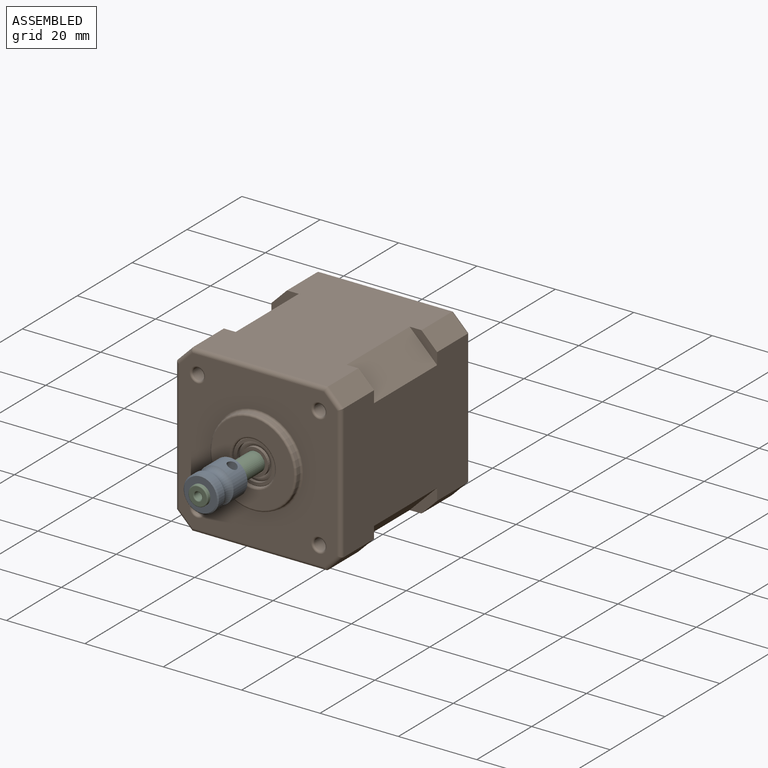
[diagram: assembled view]
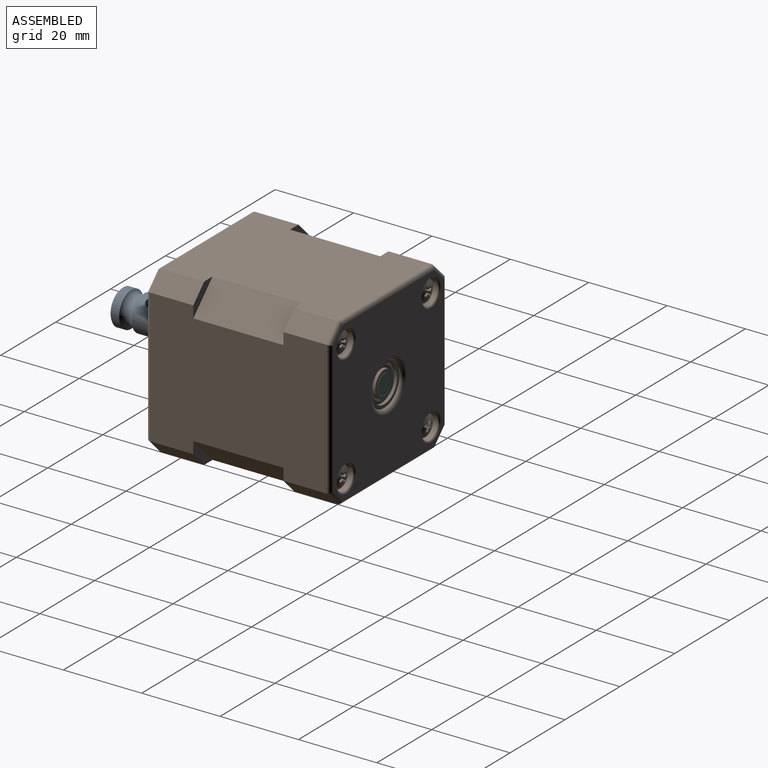
[diagram: assembled view, second angle]
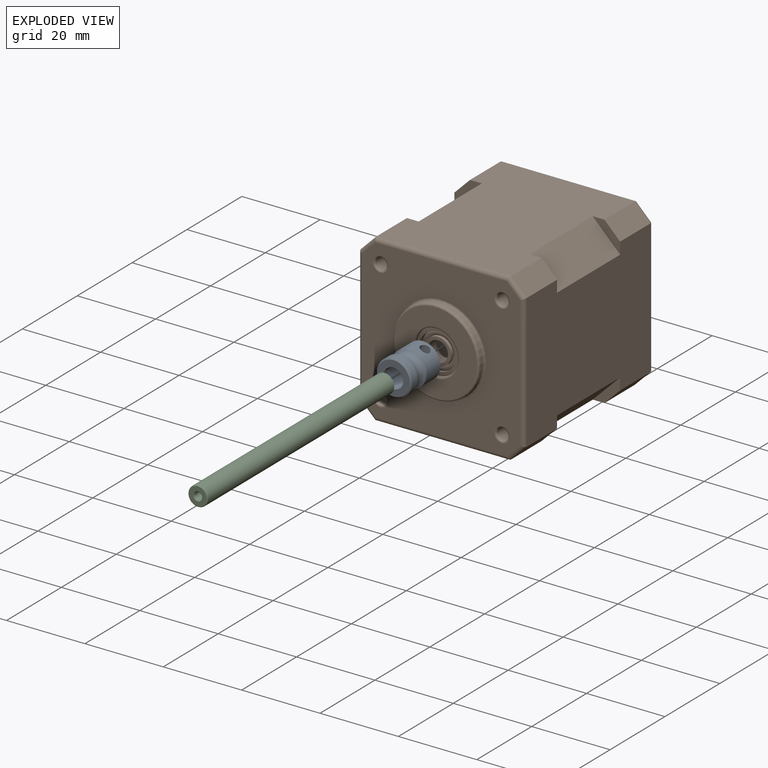
[diagram: exploded view]
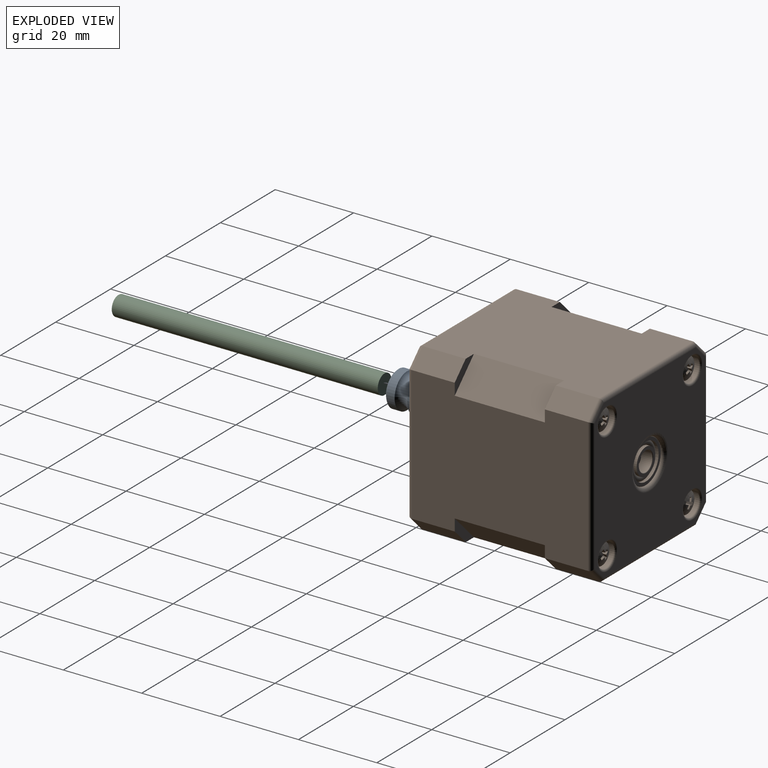
[diagram: exploded view, second angle]
ASSEMBLY  parts=3 mates=2
PART A: 9 faces, bbox 12.1x11x12.1 mm
  f0: cylinder r=4.5mm len=9mm, axis (0,1,0), area 139.2mm2, adj f5,f6,f7
  f1: cylinder r=2.5mm len=11mm, axis (0,1,0), area 167.7mm2, adj f3,f4,f6
  f2: cylinder r=4.5mm len=9mm, axis (0,1,0), area 59.4mm2, adj f5,f8
  f3: plane 8.4x8.4mm, normal (0,-1,0), area 35.8mm2, adj f1,f8
  f4: plane 8.4x8.4mm, normal (0,1,0), area 35.8mm2, adj f1,f7
  f5: torus R=5.58mm, axis (0,-1,0), area 93.4mm2, adj f0,f2
  f6: cylinder r=1.25mm len=2.5mm, axis (0,0,1), area 16.3mm2, adj f0,f1
  f7: cone r=4.5mm half-angle=45deg, axis (0,-1,0), area 11.6mm2, adj f0,f4
  f8: cone r=4.2mm half-angle=45deg, axis (0,1,0), area 11.6mm2, adj f2,f3
PART B: 190 faces, bbox 42.3x42.3x49 mm
  f0: torus R=5.35mm, axis (0,0,1), area 8.1mm2, adj f14,f172
  f1: torus R=5.35mm, axis (0,0,1), area 8.1mm2, adj f13,f175
  f2: cylinder r=4.6mm len=9.2mm, axis (0,0,1), area 24mm2, adj f4,f14
  f3: cylinder r=4.6mm len=9.2mm, axis (0,0,1), area 24mm2, adj f10,f13
  f4: torus R=4mm, axis (0,0,-1), area 33mm2, adj f2,f8
  f5: torus R=2.65mm, axis (0,0,1), area 3.8mm2, adj f6,f12
  f6: cylinder r=2.5mm len=5mm, axis (0,0,1), area 42.4mm2, adj f5,f7
  f7: torus R=2.65mm, axis (0,0,1), area 3.8mm2, adj f6,f11
  f8: cylinder r=3.4mm len=6.8mm, axis (0,0,1), area 17.7mm2, adj f4,f12
  f9: cylinder r=3.4mm len=6.8mm, axis (0,0,1), area 17.7mm2, adj f10,f11
  f10: torus R=4mm, axis (0,0,-1), area 33mm2, adj f3,f9
  f11: plane 6.8x6.8mm, normal (0,0,1), area 14.3mm2, adj f7,f9
  f12: plane 6.8x6.8mm, normal (0,0,-1), area 14.3mm2, adj f5,f8
  f13: plane 10.7x10.7mm, normal (0,0,1), area 23.4mm2, adj f1,f3
  f14: plane 10.7x10.7mm, normal (0,0,-1), area 23.4mm2, adj f0,f2
  f15: plane 5x5mm, normal (0,0,1), area 19.6mm2, adj f18
  f16: plane 10x10mm, normal (0,0,1), area 58.9mm2, adj f18,f19
  f17: cylinder r=5.5mm len=11mm, axis (0,0,1), area 100.7mm2, adj f19,f170
  f18: cylinder r=2.5mm len=5mm, axis (0,0,1), area 78.5mm2, adj f15,f16
  f19: torus R=5mm, axis (0,0,1), area 26.2mm2, adj f16,f17
  f20: cylinder r=5.5mm len=11mm, axis (0,0,1), area 13.3mm2, adj f63,f171
  f21: torus R=2.44mm, axis (0,0,-1), area 6.3mm2, adj f22,f23
  f22: cylinder r=2.8mm len=5.6mm, axis (0,0,-1), area 23.7mm2, adj f21,f156
  f23: sphere r=5mm, area 20.2mm2, adj f21,f24,f25,f26,f27,f28,f29,f31
  f24: plane 1.74x0.93mm, normal (-0.88,0.47,-0.1), area 0.9mm2, adj f23,f28,f33
  f25: plane 1.74x1.08mm, normal (-0.88,0.47,-0.1), area 0.9mm2, adj f23,f29,f32
  f26: plane 1.74x1.08mm, normal (0.88,-0.47,-0.1), area 0.9mm2, adj f23,f28,f35
  f27: plane 1.74x0.93mm, normal (0.88,-0.47,-0.1), area 0.9mm2, adj f23,f29,f36
  f28: plane 1.59x1.26mm, normal (-0.38,-0.72,-0.58), area 1mm2, adj f23,f24,f26,f30
  f29: plane 1.59x1.26mm, normal (0.38,0.72,-0.58), area 1mm2, adj f23,f25,f27,f30
  f30: plane 0.5x0.5mm, normal (0,0,-1), area 0.1mm2, adj f28,f29,f31,f34
  f31: plane 1.6x1.26mm, normal (-0.72,0.38,-0.58), area 1mm2, adj f23,f30,f32,f33
  f32: plane 1.73x0.92mm, normal (0.47,0.88,-0.1), area 0.9mm2, adj f23,f25,f31
  f33: plane 1.73x1.08mm, normal (-0.47,-0.88,-0.1), area 0.9mm2, adj f23,f24,f31
  f34: plane 1.6x1.26mm, normal (0.72,-0.38,-0.58), area 1mm2, adj f23,f30,f35,f36
  f35: plane 1.73x0.92mm, normal (-0.47,-0.88,-0.1), area 0.9mm2, adj f23,f26,f34
  f36: plane 1.73x1.08mm, normal (0.47,0.88,-0.1), area 0.9mm2, adj f23,f27,f34
  f37: cylinder r=2.8mm len=5.6mm, axis (0,0,-1), area 23mm2, adj f38,f98
  f38: torus R=2.44mm, axis (0,0,-1), area 6.3mm2, adj f37,f39
  f39: sphere r=5mm, area 20.2mm2, adj f38,f40,f41,f42,f43,f44,f45,f47
  f40: plane 1.74x0.89mm, normal (-0.85,0.51,-0.1), area 0.9mm2, adj f39,f44,f49
  f41: plane 1.74x1.06mm, normal (-0.85,0.51,-0.1), area 0.9mm2, adj f39,f45,f48
  f42: plane 1.74x1.06mm, normal (0.85,-0.51,-0.1), area 0.9mm2, adj f39,f44,f51
  f43: plane 1.74x0.89mm, normal (0.85,-0.51,-0.1), area 0.9mm2, adj f39,f45,f52
  f44: plane 1.59x1.25mm, normal (-0.42,-0.7,-0.58), area 1mm2, adj f39,f40,f42,f46
  f45: plane 1.59x1.25mm, normal (0.42,0.7,-0.58), area 1mm2, adj f39,f41,f43,f46
  f46: plane 0.51x0.51mm, normal (0,0,-1), area 0.1mm2, adj f44,f45,f47,f50
  f47: plane 1.6x1.26mm, normal (-0.7,0.42,-0.58), area 1mm2, adj f39,f46,f48,f49
  f48: plane 1.73x0.89mm, normal (0.51,0.85,-0.1), area 0.9mm2, adj f39,f41,f47
  f49: plane 1.73x1.06mm, normal (-0.51,-0.85,-0.1), area 0.9mm2, adj f39,f40,f47
  f50: plane 1.6x1.26mm, normal (0.7,-0.42,-0.58), area 1mm2, adj f39,f46,f51,f52
  f51: plane 1.73x0.89mm, normal (-0.51,-0.85,-0.1), area 0.9mm2, adj f39,f42,f50
  f52: plane 1.73x1.06mm, normal (0.51,0.85,-0.1), area 0.9mm2, adj f39,f43,f50
  f53: torus R=2mm, axis (0,0,1), area 8.3mm2, adj f60,f65
  f54: torus R=2mm, axis (0,0,1), area 8.3mm2, adj f59,f65
  f55: torus R=2mm, axis (0,0,1), area 8.3mm2, adj f58,f65
  f56: torus R=2mm, axis (0,0,1), area 8.3mm2, adj f57,f65
  f57: cylinder r=1.5mm len=4mm, axis (0,0,1), area 37.7mm2, adj f56,f90
  f58: cylinder r=1.5mm len=4mm, axis (0,0,1), area 37.7mm2, adj f55,f89
  f59: cylinder r=1.5mm len=4mm, axis (0,0,1), area 37.7mm2, adj f54,f88
  f60: cylinder r=1.5mm len=4mm, axis (0,0,1), area 37.7mm2, adj f53,f87
  f61: torus R=10.5mm, axis (0,0,1), area 53.4mm2, adj f64,f78
  f62: torus R=11.5mm, axis (0,0,1), area 55.2mm2, adj f64,f65
  f63: torus R=6mm, axis (0,0,1), area 28mm2, adj f20,f78
  f64: cylinder r=11mm len=22mm, axis (0,0,-1), area 69.1mm2, adj f61,f62
  f65: plane 40.3x40.3mm, normal (0,0,1), area 1135mm2, adj f53,f54,f55,f56,f62,f79,f80,f81
  f66: plane 7x7mm, normal (0,0,-1), area 16.5mm2, adj f69,f70,f71,f91
  f67: plane 7x7mm, normal (0,0,-1), area 16.5mm2, adj f69,f75,f76,f92
  f68: plane 7x7mm, normal (0,0,-1), area 16.5mm2, adj f73,f74,f75,f93
  f69: plane 45x34.3mm, normal (0,1,0), area 1405.5mm2, adj f66,f67,f70,f76,f81,f91,f92,f107
  f70: plane 11x4mm, normal (0.71,0.71,0), area 62.2mm2, adj f66,f69,f71,f79
  f71: plane 45x34.3mm, normal (1,0,0), area 1405.5mm2, adj f66,f70,f72,f77,f80,f91,f94,f107
  f72: plane 11x4mm, normal (0.71,-0.71,0), area 62.2mm2, adj f71,f73,f77,f82
  f73: plane 45x34.3mm, normal (0,-1,0), area 1405.5mm2, adj f68,f72,f74,f77,f84,f93,f94,f108
  f74: plane 11x4mm, normal (-0.71,-0.71,0), area 62.2mm2, adj f68,f73,f75,f86
  f75: plane 45x34.3mm, normal (-1,0,0), area 1405.5mm2, adj f67,f68,f74,f76,f85,f92,f93,f109
  f76: plane 11x4mm, normal (-0.71,0.71,0), area 62.2mm2, adj f67,f69,f75,f83
  f77: plane 7x7mm, normal (0,0,-1), area 16.5mm2, adj f71,f72,f73,f94
  f78: plane 21x21mm, normal (0,0,1), area 233.3mm2, adj f61,f63
  f79: cylinder r=1mm len=4.71mm, axis (-0.71,0.71,0), area 8.4mm2, adj f65,f70,f80,f81
  f80: cylinder r=1mm len=34.3mm, axis (0,1,0), area 53.4mm2, adj f65,f71,f79,f82
  f81: cylinder r=1mm len=34.3mm, axis (-1,0,0), area 53.4mm2, adj f65,f69,f79,f83
  f82: cylinder r=1mm len=4.71mm, axis (0.71,0.71,0), area 8.4mm2, adj f65,f72,f80,f84
  f83: cylinder r=1mm len=4.71mm, axis (-0.71,-0.71,0), area 8.4mm2, adj f65,f76,f81,f85
  f84: cylinder r=1mm len=34.3mm, axis (1,0,0), area 53.4mm2, adj f65,f73,f82,f86
  f85: cylinder r=1mm len=34.3mm, axis (0,-1,0), area 53.4mm2, adj f65,f75,f83,f86
  f86: cylinder r=1mm len=4.71mm, axis (0.71,-0.71,0), area 8.4mm2, adj f65,f74,f84,f85
  f87: plane 3x3mm, normal (0,0,1), area 7.1mm2, adj f60
  f88: plane 3x3mm, normal (0,0,1), area 7.1mm2, adj f59
  f89: plane 3x3mm, normal (0,0,1), area 7.1mm2, adj f58
  f90: plane 3x3mm, normal (0,0,1), area 7.1mm2, adj f57
  f91: plane 23x7mm, normal (0.71,0.71,0), area 227.7mm2, adj f66,f69,f71,f107
  f92: plane 23x7mm, normal (-0.71,0.71,0), area 227.7mm2, adj f67,f69,f75,f114
  f93: plane 23x7mm, normal (-0.71,-0.71,0), area 227.7mm2, adj f68,f73,f75,f109
  f94: plane 23x7mm, normal (0.71,-0.71,0), area 227.7mm2, adj f71,f73,f77,f108
  f95: torus R=3.6mm, axis (0,0,1), area 16.2mm2, adj f105,f115
  f96: torus R=2.6mm, axis (0,0,-1), area 10.9mm2, adj f105,f139
  f97: torus R=3.6mm, axis (0,0,1), area 16.2mm2, adj f104,f115
  f98: torus R=2.6mm, axis (0,0,-1), area 10.9mm2, adj f37,f104
  f99: torus R=3.6mm, axis (0,0,1), area 16.2mm2, adj f103,f115
  f100: torus R=2.6mm, axis (0,0,-1), area 10.9mm2, adj f103,f155
  f101: torus R=3.6mm, axis (0,0,1), area 16.2mm2, adj f102,f115
  f102: cylinder r=3.1mm len=6.2mm, axis (0,0,-1), area 48.7mm2, adj f101,f156
  f103: cylinder r=3.1mm len=6.2mm, axis (0,0,-1), area 39mm2, adj f99,f100
  f104: cylinder r=3.1mm len=6.2mm, axis (0,0,-1), area 39mm2, adj f97,f98
  f105: cylinder r=3.1mm len=6.2mm, axis (0,0,-1), area 39mm2, adj f95,f96
  f106: torus R=6.5mm, axis (0,0,1), area 57.9mm2, adj f115,f172
  f107: plane 7x7mm, normal (0,0,1), area 16.5mm2, adj f69,f71,f91,f112
  f108: plane 7x7mm, normal (0,0,1), area 16.5mm2, adj f71,f73,f94,f111
  f109: plane 7x7mm, normal (0,0,1), area 16.5mm2, adj f73,f75,f93,f110
  f110: plane 11x4mm, normal (-0.71,-0.71,0), area 62.2mm2, adj f73,f75,f109,f120
  f111: plane 11x4mm, normal (0.71,-0.71,0), area 62.2mm2, adj f71,f73,f108,f116
  f112: plane 11x4mm, normal (0.71,0.71,0), area 62.2mm2, adj f69,f71,f107,f119
  f113: plane 11x4mm, normal (-0.71,0.71,0), area 62.2mm2, adj f69,f75,f114,f123
  f114: plane 7x7mm, normal (0,0,1), area 16.5mm2, adj f69,f75,f92,f113
  f115: plane 40.3x40.3mm, normal (0,0,-1), area 1305.2mm2, adj f95,f97,f99,f101,f106,f116,f117,f118
  f116: cylinder r=1mm len=4.71mm, axis (0.71,0.71,0), area 8.4mm2, adj f111,f115,f117,f118
  f117: cylinder r=1mm len=34.3mm, axis (0,1,0), area 53.4mm2, adj f71,f115,f116,f119
  f118: cylinder r=1mm len=34.3mm, axis (1,0,0), area 53.4mm2, adj f73,f115,f116,f120
  f119: cylinder r=1mm len=4.71mm, axis (-0.71,0.71,0), area 8.4mm2, adj f112,f115,f117,f121
  f120: cylinder r=1mm len=4.71mm, axis (0.71,-0.71,0), area 8.4mm2, adj f110,f115,f118,f122
  f121: cylinder r=1mm len=34.3mm, axis (-1,0,0), area 53.4mm2, adj f69,f115,f119,f123
  f122: cylinder r=1mm len=34.3mm, axis (0,-1,0), area 53.4mm2, adj f75,f115,f120,f123
  f123: cylinder r=1mm len=4.71mm, axis (-0.71,-0.71,0), area 8.4mm2, adj f113,f115,f121,f122
  f124: plane 1.73x1.09mm, normal (0.44,0.89,-0.1), area 0.9mm2, adj f126,f133,f137
  f125: plane 1.73x0.94mm, normal (-0.44,-0.89,-0.1), area 0.9mm2, adj f126,f134,f137
  f126: plane 1.6x1.27mm, normal (0.73,-0.36,-0.58), area 1mm2, adj f124,f125,f130,f137
  f127: plane 1.73x1.09mm, normal (-0.44,-0.89,-0.1), area 0.9mm2, adj f129,f136,f137
  f128: plane 1.73x0.94mm, normal (0.44,0.89,-0.1), area 0.9mm2, adj f129,f135,f137
  f129: plane 1.6x1.27mm, normal (-0.73,0.36,-0.58), area 1mm2, adj f127,f128,f130,f137
  f130: plane 0.5x0.5mm, normal (0,0,-1), area 0.1mm2, adj f126,f129,f131,f132
  f131: plane 1.59x1.26mm, normal (0.36,0.73,-0.58), area 1mm2, adj f130,f133,f135,f137
  f132: plane 1.59x1.26mm, normal (-0.36,-0.73,-0.58), area 1mm2, adj f130,f134,f136,f137
  f133: plane 1.74x0.94mm, normal (0.89,-0.44,-0.1), area 0.9mm2, adj f124,f131,f137
  f134: plane 1.74x1.09mm, normal (0.89,-0.44,-0.1), area 0.9mm2, adj f125,f132,f137
  f135: plane 1.74x1.09mm, normal (-0.89,0.44,-0.1), area 0.9mm2, adj f128,f131,f137
  f136: plane 1.74x0.94mm, normal (-0.89,0.44,-0.1), area 0.9mm2, adj f127,f132,f137
  f137: sphere r=5mm, area 20.2mm2, adj f124,f125,f126,f127,f128,f129,f131,f132
  f138: torus R=2.44mm, axis (0,0,-1), area 6.3mm2, adj f137,f139
  f139: cylinder r=2.8mm len=5.6mm, axis (0,0,-1), area 23mm2, adj f96,f138
  f140: plane 1.73x0.97mm, normal (-0.4,0.91,-0.1), area 0.9mm2, adj f142,f149,f153
  f141: plane 1.73x1.1mm, normal (0.4,-0.91,-0.1), area 0.9mm2, adj f142,f150,f153
  f142: plane 1.6x1.27mm, normal (0.74,0.33,-0.58), area 1mm2, adj f140,f141,f146,f153
  f143: plane 1.73x0.97mm, normal (0.4,-0.91,-0.1), area 0.9mm2, adj f145,f152,f153
  f144: plane 1.73x1.1mm, normal (-0.4,0.91,-0.1), area 0.9mm2, adj f145,f151,f153
  f145: plane 1.6x1.27mm, normal (-0.74,-0.33,-0.58), area 1mm2, adj f143,f144,f146,f153
  f146: plane 0.49x0.49mm, normal (0,0,-1), area 0.1mm2, adj f142,f145,f147,f148
  f147: plane 1.59x1.26mm, normal (-0.33,0.74,-0.58), area 1mm2, adj f146,f149,f151,f153
  f148: plane 1.59x1.26mm, normal (0.33,-0.74,-0.58), area 1mm2, adj f146,f150,f152,f153
  f149: plane 1.74x1.1mm, normal (0.91,0.4,-0.1), area 0.9mm2, adj f140,f147,f153
  f150: plane 1.74x0.97mm, normal (0.91,0.4,-0.1), area 0.9mm2, adj f141,f148,f153
  f151: plane 1.74x0.97mm, normal (-0.91,-0.4,-0.1), area 0.9mm2, adj f144,f147,f153
  f152: plane 1.74x1.1mm, normal (-0.91,-0.4,-0.1), area 0.9mm2, adj f143,f148,f153
  f153: sphere r=5mm, area 20.2mm2, adj f140,f141,f142,f143,f144,f145,f147,f148
  f154: torus R=2.44mm, axis (0,0,-1), area 6.3mm2, adj f153,f155
  f155: cylinder r=2.8mm len=5.6mm, axis (0,0,-1), area 23mm2, adj f100,f154
  f156: plane 6.2x6.2mm, normal (0,0,-1), area 5.6mm2, adj f22,f102
  f157: plane 10.7x10.7mm, normal (0,0,1), area 23.4mm2, adj f169,f171
  f158: plane 10.7x10.7mm, normal (0,0,-1), area 23.4mm2, adj f168,f170
  f159: plane 6.8x6.8mm, normal (0,0,1), area 14.3mm2, adj f163,f166
  f160: plane 6.8x6.8mm, normal (0,0,-1), area 14.3mm2, adj f162,f164
  f161: torus R=4mm, axis (0,0,1), area 33mm2, adj f162,f168
  f162: cylinder r=3.4mm len=6.8mm, axis (0,0,-1), area 17.7mm2, adj f160,f161
  f163: cylinder r=3.4mm len=6.8mm, axis (0,0,-1), area 17.7mm2, adj f159,f167
  f164: torus R=2.65mm, axis (0,0,-1), area 3.8mm2, adj f160,f165
  f165: cylinder r=2.5mm len=5mm, axis (0,0,-1), area 42.4mm2, adj f164,f166
  f166: torus R=2.65mm, axis (0,0,-1), area 3.8mm2, adj f159,f165
  f167: torus R=4mm, axis (0,0,1), area 33mm2, adj f163,f169
  f168: cylinder r=4.6mm len=9.2mm, axis (0,0,-1), area 24mm2, adj f158,f161
  f169: cylinder r=4.6mm len=9.2mm, axis (0,0,-1), area 24mm2, adj f157,f167
  f170: torus R=5.35mm, axis (0,0,-1), area 8.1mm2, adj f17,f158
  f171: torus R=5.35mm, axis (0,0,-1), area 8.1mm2, adj f20,f157
  f172: cylinder r=5.5mm len=11mm, axis (0,0,-1), area 5.2mm2, adj f0,f106
  f173: plane 5x5mm, normal (0,0,-1), area 19.6mm2, adj f177
  f174: plane 9x9mm, normal (0,0,-1), area 44mm2, adj f176,f177
  f175: cylinder r=5.5mm len=11mm, axis (0,0,-1), area 5.2mm2, adj f1,f176
  f176: torus R=4.5mm, axis (0,0,-1), area 50.7mm2, adj f174,f175
  f177: cylinder r=2.5mm len=5mm, axis (0,0,-1), area 78.5mm2, adj f173,f174
  f178: cylinder r=1.5mm len=3mm, axis (0,0,-1), area 18.8mm2, adj f179,f180
  f179: plane 3x3mm, normal (0,0,-1), area 7.1mm2, adj f178
  f180: plane 3x3mm, normal (0,0,1), area 7.1mm2, adj f178
  f181: cylinder r=1.5mm len=3mm, axis (0,0,-1), area 18.8mm2, adj f182,f183
  f182: plane 3x3mm, normal (0,0,-1), area 7.1mm2, adj f181
  f183: plane 3x3mm, normal (0,0,1), area 7.1mm2, adj f181
  f184: cylinder r=1.5mm len=3mm, axis (0,0,-1), area 18.8mm2, adj f185,f186
  f185: plane 3x3mm, normal (0,0,-1), area 7.1mm2, adj f184
  f186: plane 3x3mm, normal (0,0,1), area 7.1mm2, adj f184
  f187: cylinder r=1.5mm len=3mm, axis (0,0,-1), area 18.8mm2, adj f188,f189
  f188: plane 3x3mm, normal (0,0,-1), area 7.1mm2, adj f187
  f189: plane 3x3mm, normal (0,0,1), area 7.1mm2, adj f187
PART C: 7 faces, bbox 5.2x5.2x68 mm
  f0: torus R=1.25mm, axis (0,0,1), area 2.7mm2, adj f2,f4
  f1: torus R=2.25mm, axis (0,0,1), area 5.9mm2, adj f3,f4
  f2: cylinder r=1mm len=9.75mm, axis (0,0,1), area 61.3mm2, adj f0,f6
  f3: cylinder r=2.5mm len=67.75mm, axis (0,0,-1), area 1064.2mm2, adj f1,f5
  f4: plane 4.5x4.5mm, normal (0,0,1), area 11mm2, adj f0,f1
  f5: plane 5x5mm, normal (0,0,-1), area 19.6mm2, adj f3
  f6: plane 2x2mm, normal (0,0,1), area 3.1mm2, adj f2
PLACE A rot(axis=(0,1,0),26.7deg) t=(-34.74,-19.86,168.94)mm
PLACE B rot(axis=(1,0,0),90deg) t=(-24.34,39.64,164.32)mm
PLACE C rot(axis=(0.95,0.23,-0.23),93.1deg) t=(-27.53,41.64,160.14)mm
MATE revolute C.f0 <-> B.f0  axis (0,1,0) through (-34.74,41.64,168.94)mm
MATE cylindrical A.f0 <-> C.f0  axis (0,-1,0) through (-34.74,-25.36,168.94)mm
